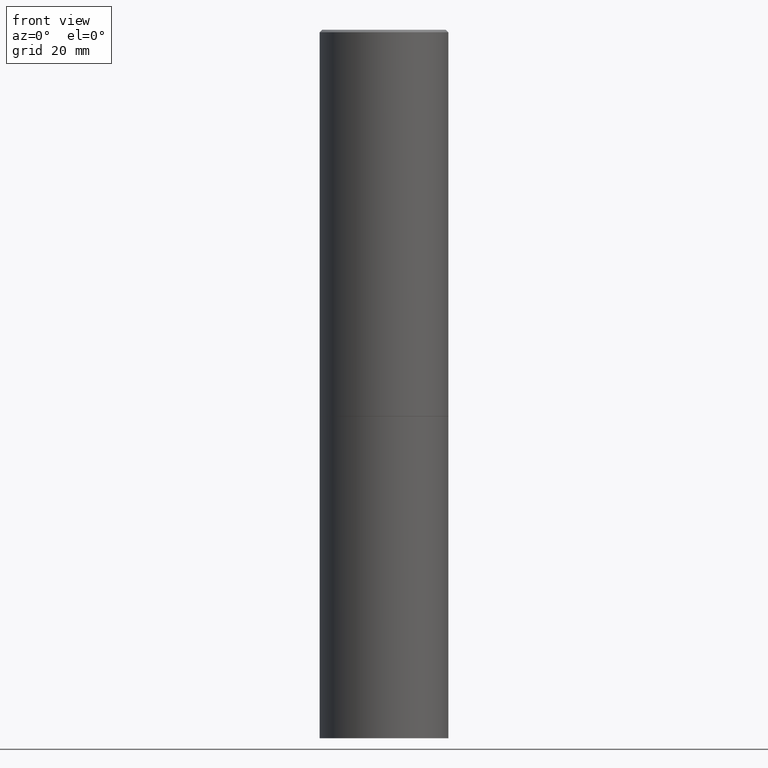
[diagram: clean part render]
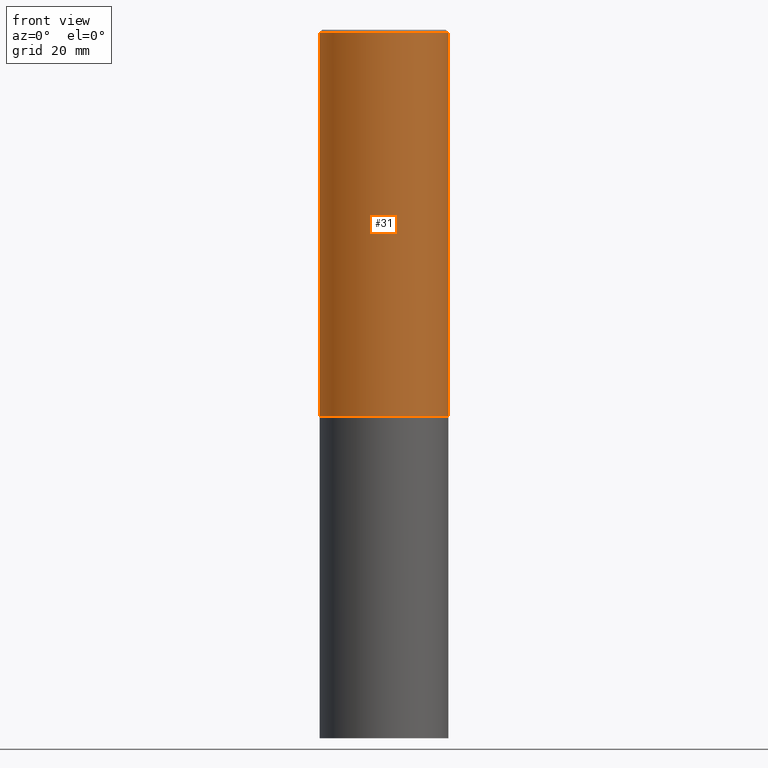
[diagram: same view with one face highlighted and labeled with its STEP entity id]
A machine part, front view. The second image highlights one B-rep face of the part: STEP entity #31.
In plain terms, the highlighted cylindrical surface (partial cylindrical patch) has radius 12.7 mm, axis along (-0, 0, 1).
Its self-contained STEP definition (entity closure, byte-faithful):
#1 = VERTEX_POINT ( 'NONE', #246 ) ;
#17 = CARTESIAN_POINT ( 'NONE',  ( 4.890937612370304688E-31, -6.982962677686335982E-17, -0.02000000000000012879 ) ) ;
#22 = DIRECTION ( 'NONE',  ( 1.000000000000000000, -6.982962677686266711E-15, 0.000000000000000000 ) ) ;
#25 = CARTESIAN_POINT ( 'NONE',  ( 7.333960949749226429E-29, -1.047095253519059492E-14, -2.999000000000000554 ) ) ;
#26 = ORIENTED_EDGE ( 'NONE', *, *, #356, .T. ) ;
#31 = ADVANCED_FACE ( 'NONE', ( #154 ), #32, .T. ) ;
#32 = CYLINDRICAL_SURFACE ( 'NONE', #110, 0.4999999999999998335 ) ;
#37 = DIRECTION ( 'NONE',  ( -2.445468806185136597E-29, 3.491481338843145583E-15, 1.000000000000000000 ) ) ;
#54 = DIRECTION ( 'NONE',  ( 1.000000000000000000, -6.982962677686266711E-15, 0.000000000000000000 ) ) ;
#55 = VERTEX_POINT ( 'NONE', #208 ) ;
#56 = CIRCLE ( 'NONE', #338, 0.4999999999999997224 ) ;
#69 = DIRECTION ( 'NONE',  ( -2.445468806185136877E-29, 3.491481338843145188E-15, 1.000000000000000000 ) ) ;
#77 = ORIENTED_EDGE ( 'NONE', *, *, #257, .T. ) ;
#80 = ORIENTED_EDGE ( 'NONE', *, *, #322, .F. ) ;
#86 = CIRCLE ( 'NONE', #314, 0.5000000000000000000 ) ;
#98 = CARTESIAN_POINT ( 'NONE',  ( 0.000000000000000000, 0.000000000000000000, 0.000000000000000000 ) ) ;
#105 = CARTESIAN_POINT ( 'NONE',  ( -0.4999999999999998335, 3.552713678800499746E-15, -2.459467545127452330E-29 ) ) ;
#110 = AXIS2_PLACEMENT_3D ( 'NONE', #98, #37, #316 ) ;
#113 = ORIENTED_EDGE ( 'NONE', *, *, #284, .F. ) ;
#138 = VECTOR ( 'NONE', #69, 39.37007874015748143 ) ;
#154 = FACE_OUTER_BOUND ( 'NONE', #247, .T. ) ;
#155 = VECTOR ( 'NONE', #218, 39.37007874015748143 ) ;
#175 = VERTEX_POINT ( 'NONE', #326 ) ;
#208 = CARTESIAN_POINT ( 'NONE',  ( 0.5000000000000000000, -1.396243387403372828E-14, -2.999000000000000554 ) ) ;
#209 = LINE ( 'NONE', #320, #138 ) ;
#218 = DIRECTION ( 'NONE',  ( -2.445468806185136877E-29, 3.491481338843145188E-15, 1.000000000000000000 ) ) ;
#231 = DIRECTION ( 'NONE',  ( -2.445468806185136597E-29, 3.491481338843145583E-15, 1.000000000000000000 ) ) ;
#245 = CARTESIAN_POINT ( 'NONE',  ( -0.5000000000000000000, -1.717677402183226998E-15, -2.999000000000000554 ) ) ;
#246 = CARTESIAN_POINT ( 'NONE',  ( -0.4999999999999997224, 3.421651712066268085E-15, -0.02000000000000012879 ) ) ;
#247 = EDGE_LOOP ( 'NONE', ( #80, #26, #77, #113 ) ) ;
#257 = EDGE_CURVE ( 'NONE', #55, #175, #209, .T. ) ;
#274 = DIRECTION ( 'NONE',  ( -2.445468806185136597E-29, 3.491481338843145583E-15, 1.000000000000000000 ) ) ;
#280 = LINE ( 'NONE', #105, #155 ) ;
#284 = EDGE_CURVE ( 'NONE', #1, #175, #56, .T. ) ;
#309 = VERTEX_POINT ( 'NONE', #245 ) ;
#314 = AXIS2_PLACEMENT_3D ( 'NONE', #25, #274, #22 ) ;
#316 = DIRECTION ( 'NONE',  ( 1.000000000000000000, -6.982962677686267499E-15, 4.876176775795936353E-29 ) ) ;
#320 = CARTESIAN_POINT ( 'NONE',  ( 0.4999999999999998335, -3.491481338843132566E-15, 2.438088387897967336E-29 ) ) ;
#322 = EDGE_CURVE ( 'NONE', #309, #1, #280, .T. ) ;
#326 = CARTESIAN_POINT ( 'NONE',  ( 0.4999999999999997224, -3.500078625662627502E-15, -0.02000000000000012879 ) ) ;
#338 = AXIS2_PLACEMENT_3D ( 'NONE', #17, #231, #54 ) ;
#356 = EDGE_CURVE ( 'NONE', #309, #55, #86, .T. ) ;